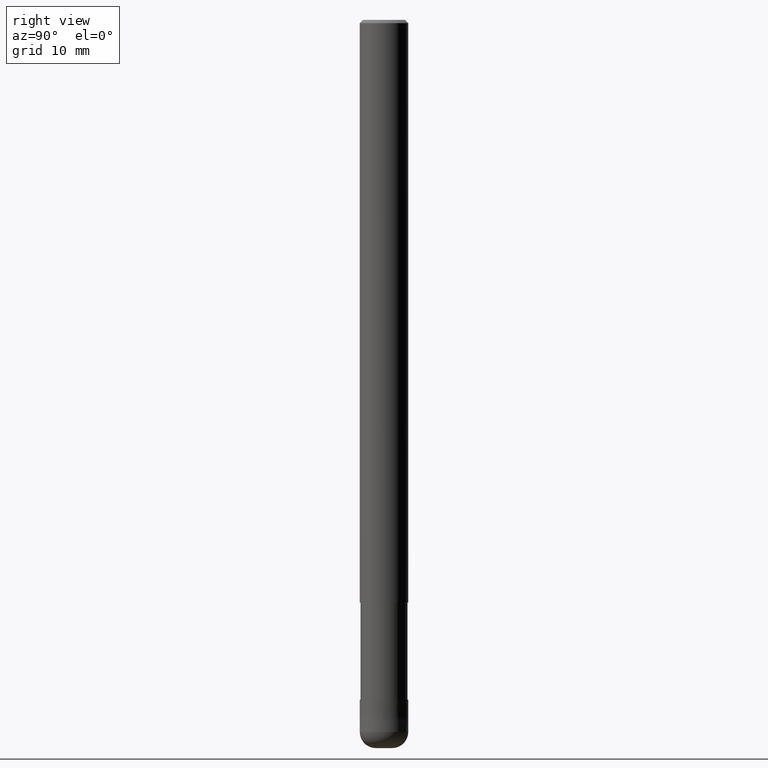
[diagram: clean part render]
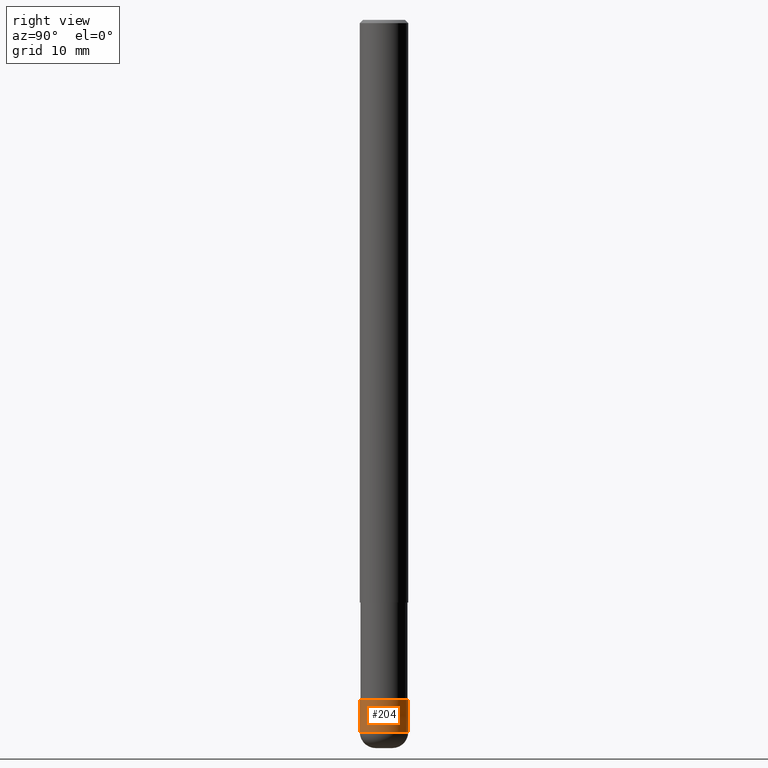
[diagram: same view with one face highlighted and labeled with its STEP entity id]
A machine part, right view. The second image highlights one B-rep face of the part: STEP entity #204.
In plain terms, the highlighted conical surface has half-angle 0.001 deg.
Its self-contained STEP definition (entity closure, byte-faithful):
#116=EDGE_CURVE('',#172,#170,#254,.T.);
#118=VERTEX_POINT('',#256);
#124=VERTEX_POINT('',#262);
#154=EDGE_CURVE('',#124,#118,#295,.T.);
#160=EDGE_CURVE('',#170,#124,#301,.T.);
#170=VERTEX_POINT('',#313);
#172=VERTEX_POINT('',#315);
#196=EDGE_CURVE('',#172,#118,#346,.T.);
#204=ADVANCED_FACE('',(#356),#357,.T.);
#254=LINE('',#408,#409);
#256=CARTESIAN_POINT('',(3.67369660083175E-016,-2.9999,-84.0));
#262=CARTESIAN_POINT('',(3.67381906146713E-016,-3.0,-88.0));
#295=LINE('',#460,#461);
#301=CIRCLE('',#469,3.0);
#313=CARTESIAN_POINT('',(0.0,3.0,-88.0));
#315=CARTESIAN_POINT('',(0.0,2.9999,-84.0));
#346=CIRCLE('',#521,2.9999);
#356=FACE_OUTER_BOUND('',#532,.T.);
#357=CONICAL_SURFACE('',#533,2.99995,2.49999999948444E-005);
#408=CARTESIAN_POINT('',(-3.67375783114944E-016,2.99995,-86.0));
#409=VECTOR('',#564,1.0);
#460=CARTESIAN_POINT('',(3.67375783114944E-016,-2.99995,-86.0));
#461=VECTOR('',#604,1.0);
#469=AXIS2_PLACEMENT_3D('',#608,#609,#610);
#521=AXIS2_PLACEMENT_3D('',#683,#684,#685);
#532=EDGE_LOOP('',(#706,#707,#708,#709));
#533=AXIS2_PLACEMENT_3D('',#710,#711,#712);
#564=DIRECTION('',(-3.06151588360568E-021,2.49999999922403E-005,-0.9999999996875));
#604=DIRECTION('',(-3.06151588360568E-021,2.49999999922403E-005,0.9999999996875));
#608=CARTESIAN_POINT('',(0.0,0.0,-88.0));
#609=DIRECTION('',(0.0,0.0,-1.0));
#610=DIRECTION('',(0.0,1.0,0.0));
#683=CARTESIAN_POINT('',(0.0,0.0,-84.0));
#684=DIRECTION('',(0.0,0.0,-1.0));
#685=DIRECTION('',(0.0,1.0,0.0));
#706=ORIENTED_EDGE('',*,*,#116,.F.);
#707=ORIENTED_EDGE('',*,*,#196,.T.);
#708=ORIENTED_EDGE('',*,*,#154,.F.);
#709=ORIENTED_EDGE('',*,*,#160,.F.);
#710=CARTESIAN_POINT('',(0.0,0.0,-86.0));
#711=DIRECTION('',(0.0,-0.0,-1.0));
#712=DIRECTION('',(0.0,1.0,0.0));